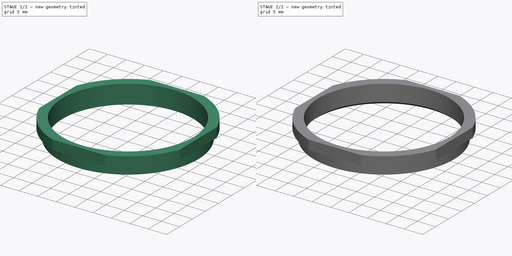
[diagram: build sequence overview — one tinted view per stage of 2, left to right]
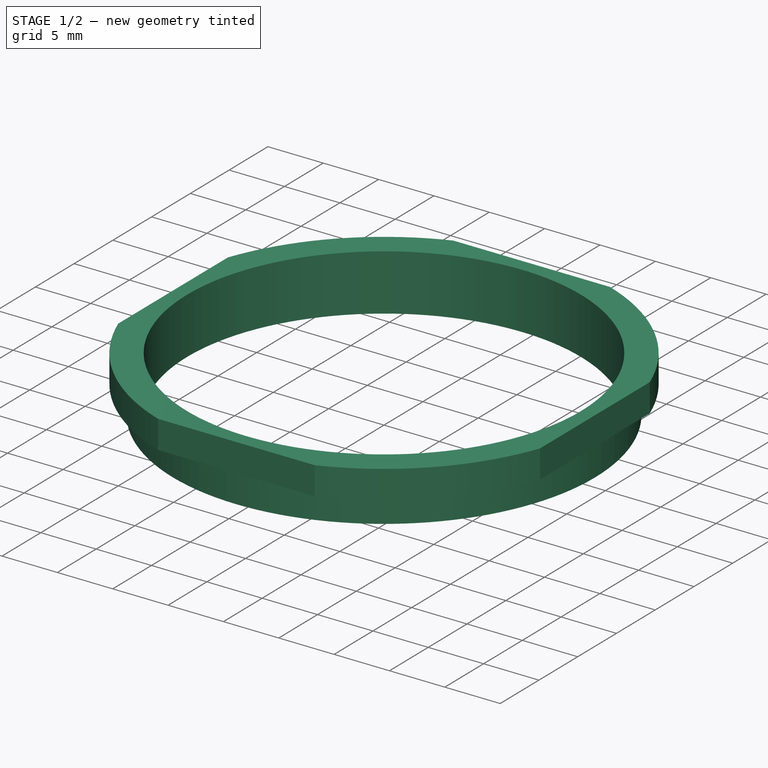
[diagram: stage 1 of 2 — iso view after this stage's code; geometry added in this stage tinted green]
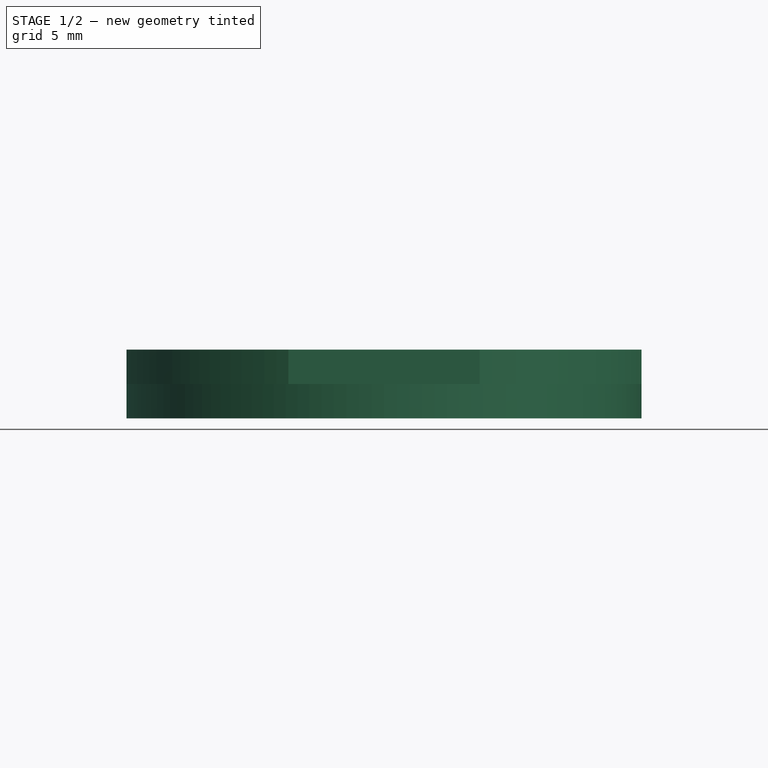
[diagram: stage 1 of 2 — front view after this stage's code; geometry added in this stage tinted green]
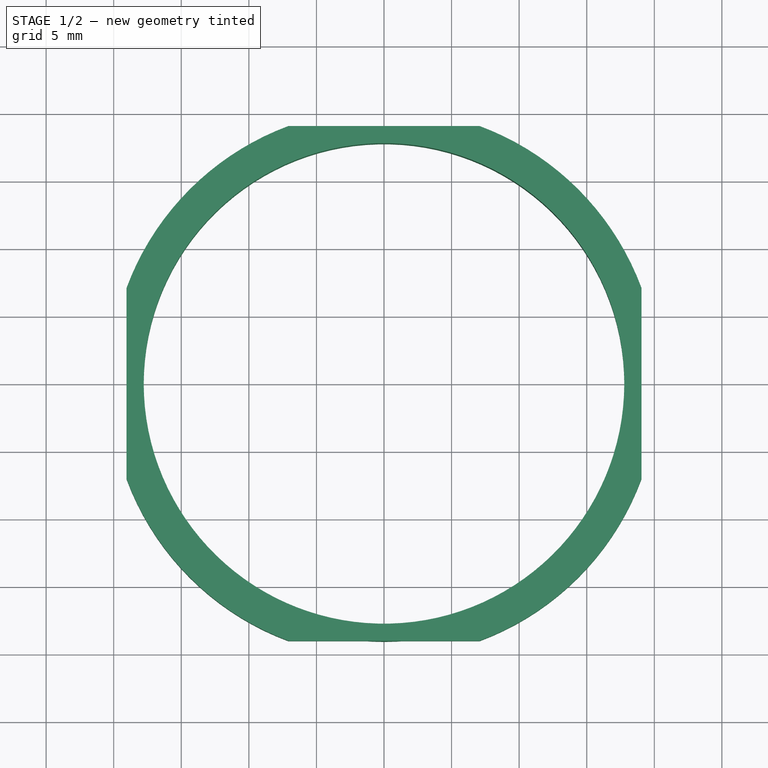
[diagram: stage 1 of 2 — top view after this stage's code; geometry added in this stage tinted green]
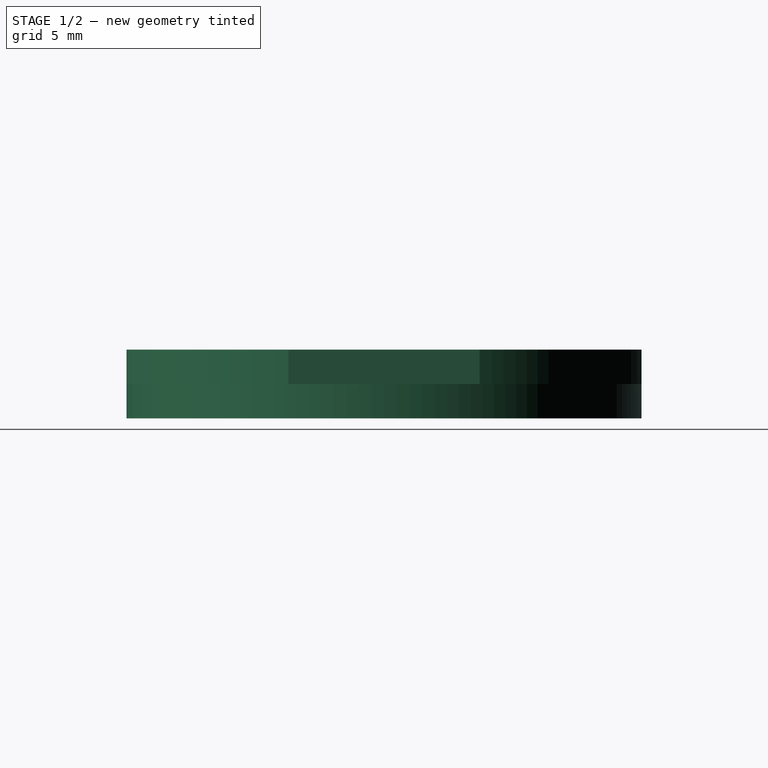
[diagram: stage 1 of 2 — right view after this stage's code; geometry added in this stage tinted green]
FCSTD DOCUMENT  (FreeCAD 0.20R29410 (Git))
Label: brake cylinder mounting aligner
License: All rights reserved
LicenseURL: http://en.wikipedia.org/wiki/All_rights_reserved
objects: Sketcher::SketchObject×2, PartDesign::Revolution×1, PartDesign::Pocket×1, PartDesign::Chamfer×1, PartDesign::Body×1
note: 9 computed .brp shape members not serialized (recipe doc carries the construction recipe); baked Part::Feature solids carry a one-line shape summary decoded from their .brp

FEATURE [Sketcher::SketchObject] Sketch
  FullyConstrained = true
  MapMode = 5
  Placement = pos=(0,0,0) rot=(1,0,0;1.5708rad)
  Support = -> [XZ_Plane]
  expr: Constraints[15] = 1.5" / 2
  sketch-geometry (6):
    g0: LineSegment StartX=-17.78 StartY=0 StartZ=0 EndX=-20.32 EndY=0 EndZ=0
    g1: LineSegment StartX=-20.32 StartY=0 StartZ=0 EndX=-20.32 EndY=-2.54 EndZ=0
    g2: LineSegment StartX=-20.32 StartY=-2.54 StartZ=0 EndX=-19.05 EndY=-2.54 EndZ=0
    g3: LineSegment StartX=-19.05 StartY=-2.54 StartZ=0 EndX=-19.05 EndY=-5.08 EndZ=0
    g4: LineSegment StartX=-19.05 StartY=-5.08 StartZ=0 EndX=-17.78 EndY=-5.08 EndZ=0
    g5: LineSegment StartX=-17.78 StartY=-5.08 StartZ=0 EndX=-17.78 EndY=0 EndZ=0
  constraints (18):
    c: PointOnObject(g0,g-1)
    c: Horizontal(g0)
    c: Coincident(g0,g1)
    c: Vertical(g1)
    c: Coincident(g1,g2)
    c: Horizontal(g2)
    c: Coincident(g2,g3)
    c: Vertical(g3)
    c: Coincident(g3,g4)
    c: Horizontal(g4)
    c: Coincident(g4,g5)
    c: Coincident(g5,g0)
    c: Vertical(g5)
    c: DistanceX(g0,g-1) = 20.32
    c: DistanceX(g4,g-1) = 17.78
    c: DistanceX(g3,g-1) = 19.05
    c: DistanceY(g3,g2) = 2.54
    c: DistanceY(g1,g0) = 2.54
FEATURE [PartDesign::Revolution] Revolution
  Angle = 360
  Axis = (0,2e-16,1)
  Base = (0,0,0)
  Placement = pos=(0,0,0) rot=(1,0,0;1.5708rad)
  Profile = -> Sketch
  ReferenceAxis = -> Sketch [V_Axis]
FEATURE [Sketcher::SketchObject] Sketch001
  FullyConstrained = true
  MapMode = 5
  Support = -> [XY_Plane]
  expr: Constraints[10] = 0.75" * 2
  sketch-geometry (10):
    g0: LineSegment StartX=-19.05 StartY=-19.05 StartZ=0 EndX=-19.05 EndY=19.05 EndZ=0
    g1: LineSegment StartX=-19.05 StartY=19.05 StartZ=0 EndX=19.05 EndY=19.05 EndZ=0
    g2: LineSegment StartX=19.05 StartY=19.05 StartZ=0 EndX=19.05 EndY=-19.05 EndZ=0
    g3: LineSegment StartX=19.05 StartY=-19.05 StartZ=0 EndX=-19.05 EndY=-19.05 EndZ=0
    g4: GeomPoint X=-1e-15 Y=1.1e-15 Z=0
    g5: LineSegment StartX=-25.4 StartY=-25.4 StartZ=0 EndX=-25.4 EndY=25.4 EndZ=0
    g6: LineSegment StartX=-25.4 StartY=25.4 StartZ=0 EndX=25.4 EndY=25.4 EndZ=0
    g7: LineSegment StartX=25.4 StartY=25.4 StartZ=0 EndX=25.4 EndY=-25.4 EndZ=0
    g8: LineSegment StartX=25.4 StartY=-25.4 StartZ=0 EndX=-25.4 EndY=-25.4 EndZ=0
    g9: GeomPoint X=-1e-15 Y=1.1e-15 Z=0
  constraints (24):
    c: Coincident(g0,g1)
    c: Coincident(g1,g2)
    c: Coincident(g2,g3)
    c: Coincident(g3,g0)
    c: Horizontal(g1)
    c: Horizontal(g3)
    c: Vertical(g0)
    c: Vertical(g2)
    c: Symmetric(g1,g0,g4)
    c: Coincident(g4,g-1)
    c: DistanceY(g2,g1) = 38.1
    c: Equal(g2,g1)
    c: Coincident(g5,g6)
    c: Coincident(g6,g7)
    c: Coincident(g7,g8)
    c: Coincident(g8,g5)
    c: Horizontal(g6)
    c: Horizontal(g8)
    c: Vertical(g5)
    c: Vertical(g7)
    c: Symmetric(g6,g5,g9)
    c: Coincident(g9,g4)
    c: Equal(g7,g6)
    c: DistanceY(g7,g6) = 50.8
FEATURE [PartDesign::Pocket] Pocket
  BaseFeature = -> Revolution
  Direction = (0,0,-1)
  Length = 5.08
  Length2 = 5
  Placement = pos=(0,0,0) rot=(1,0,0;1.5708rad)
  Profile = -> Sketch001
  ReferenceAxis = -> Sketch001 [N_Axis]
  Type = 0
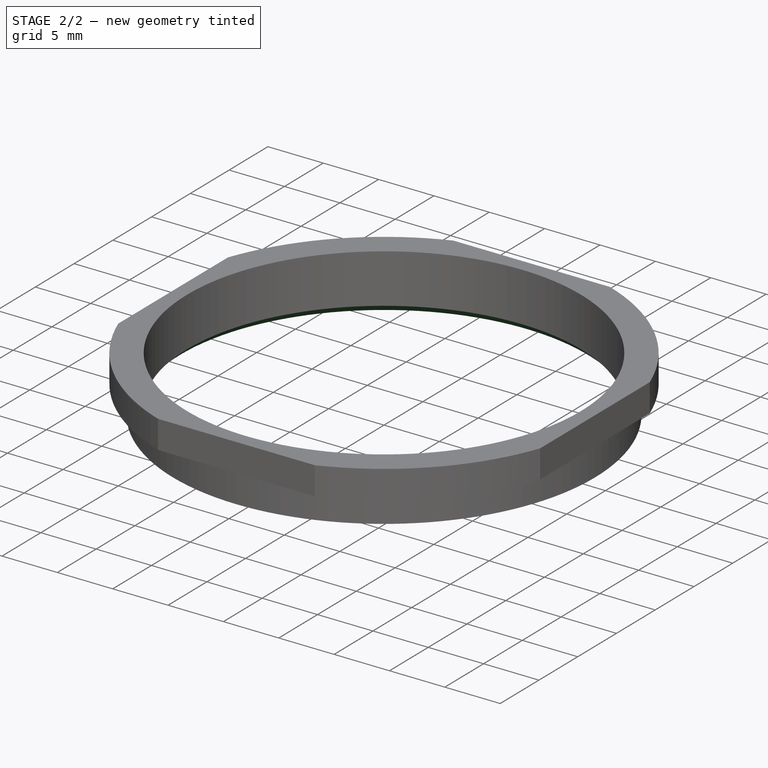
[diagram: stage 2 of 2 — iso view after this stage's code; geometry added in this stage tinted green]
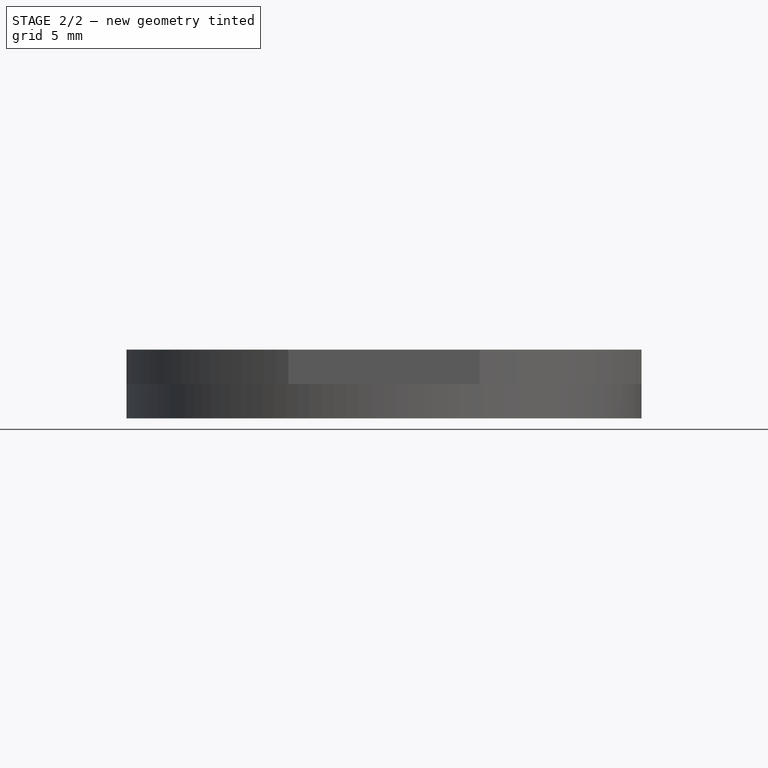
[diagram: stage 2 of 2 — front view after this stage's code; geometry added in this stage tinted green]
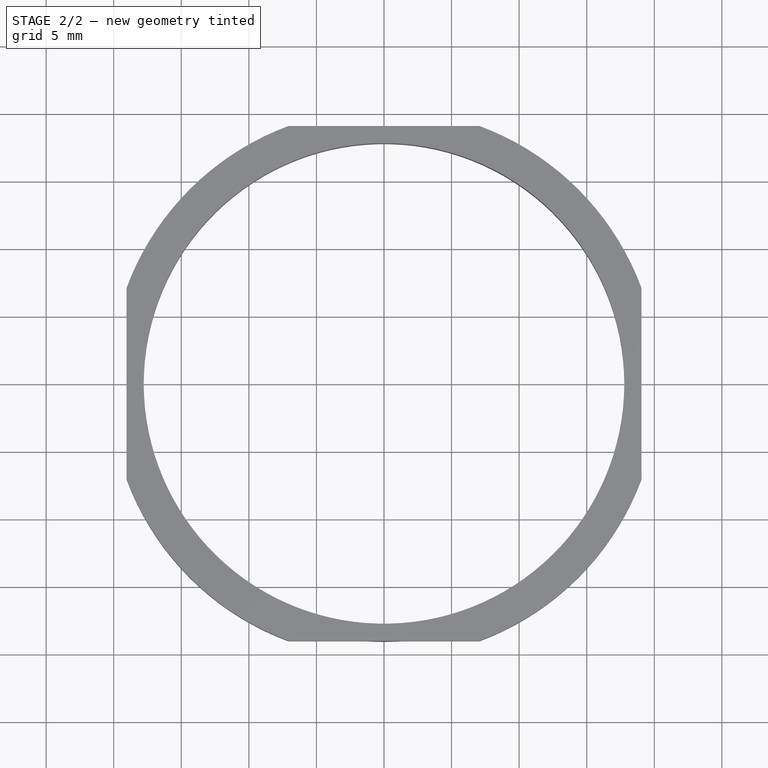
[diagram: stage 2 of 2 — top view after this stage's code; geometry added in this stage tinted green]
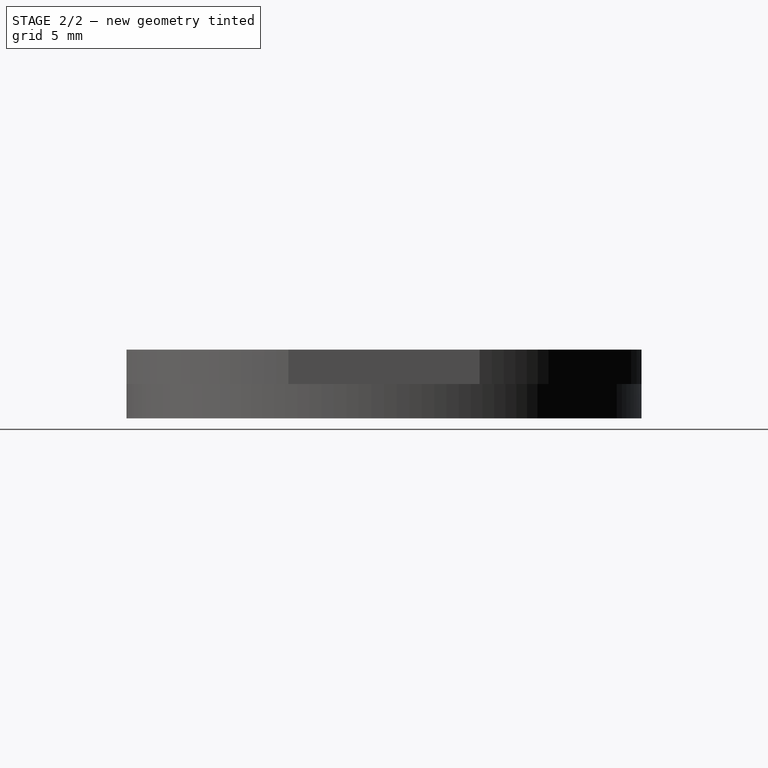
[diagram: stage 2 of 2 — right view after this stage's code; geometry added in this stage tinted green]
FEATURE [PartDesign::Chamfer] Chamfer
  Angle = 45
  Base = -> Pocket [Edge30]
  BaseFeature = -> Pocket
  ChamferType = 0
  FlipDirection = false
  Placement = pos=(0,0,0) rot=(1,0,0;1.5708rad)
  Size = 0.635
  Size2 = 1
  SupportTransform = false
  UseAllEdges = false
FEATURE [PartDesign::Body] Body
  Group = -> [Sketch,Revolution,Sketch001,Pocket,Chamfer]
  Origin = -> Origin
  Tip = -> Chamfer
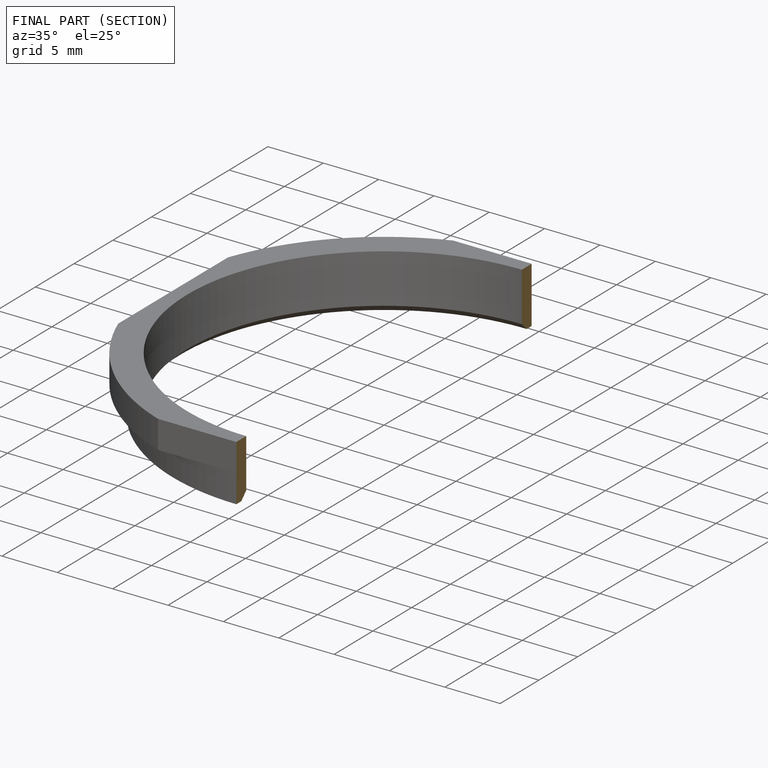
[diagram: finished part — half-section view (interior)]
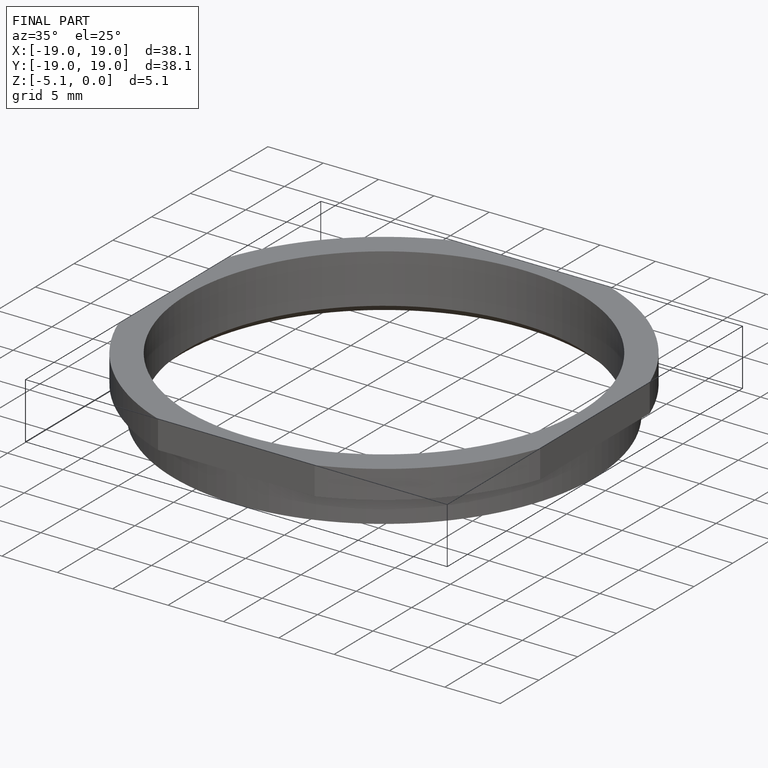
[diagram: finished part — iso view with bounding-box wireframe]
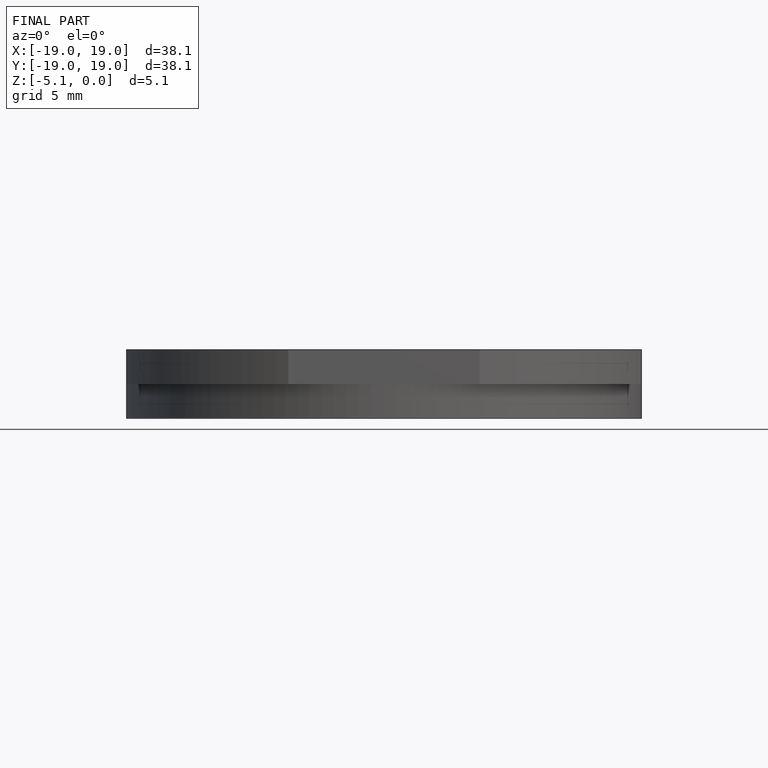
[diagram: finished part — front view with bounding-box wireframe]
